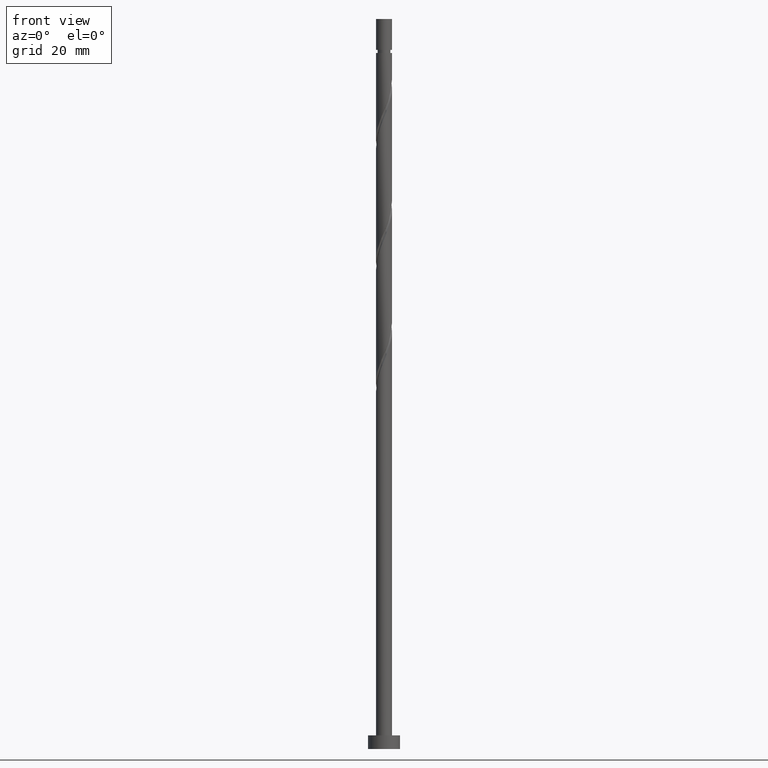
[diagram: clean part render]
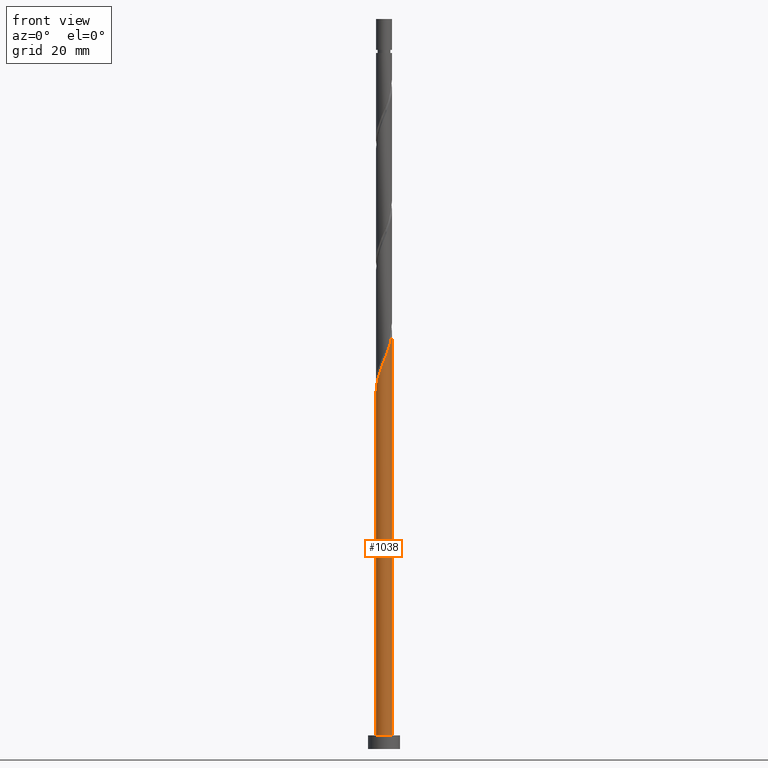
[diagram: same view with one face highlighted and labeled with its STEP entity id]
A machine part, front view. The second image highlights one B-rep face of the part: STEP entity #1038.
In plain terms, the highlighted cylindrical surface (edge-blend (fillet) strip) has radius 1.75 mm, axis along (-0, -0, -1).
Its self-contained STEP definition (entity closure, byte-faithful):
#12 = DIRECTION ( 'NONE',  ( 1.000000000000000000, 0.000000000000000000, 0.000000000000000000 ) ) ;
#30 = CARTESIAN_POINT ( 'NONE',  ( -1.750000000000000000, 0.000000000000000000, 160.0000000000000000 ) ) ;
#50 = CARTESIAN_POINT ( 'NONE',  ( 0.000000000000000000, 0.000000000000000000, 160.0000000000000000 ) ) ;
#83 = CARTESIAN_POINT ( 'NONE',  ( 1.704685323725828150, -0.3956614045794445977, 90.71485790936121418 ) ) ;
#100 = CARTESIAN_POINT ( 'NONE',  ( -0.1490321258245771163, -1.743642573887268510, 84.65425184875519449 ) ) ;
#101 = ORIENTED_EDGE ( 'NONE', *, *, #510, .F. ) ;
#111 = CARTESIAN_POINT ( 'NONE',  ( -1.647983256157279808, -0.5887709125162861046, 79.80576700027032189 ) ) ;
#131 = VERTEX_POINT ( 'NONE', #234 ) ;
#157 = VECTOR ( 'NONE', #926, 1000.000000000000000 ) ;
#208 = CARTESIAN_POINT ( 'NONE',  ( 1.647797801975740661, -0.6407581522230126891, 90.10879730330061932 ) ) ;
#214 = CARTESIAN_POINT ( 'NONE',  ( 1.039795711094358976, -1.429906809909690768, 87.68455487905818302 ) ) ;
#233 = VERTEX_POINT ( 'NONE', #417 ) ;
#234 = CARTESIAN_POINT ( 'NONE',  ( 1.750000000000000000, 2.143131898507868297E-16, 3.000000000000000000 ) ) ;
#249 = VERTEX_POINT ( 'NONE', #1061 ) ;
#335 = CARTESIAN_POINT ( 'NONE',  ( 0.5948253771886973240, -1.664929841311235892, 86.47243366693696487 ) ) ;
#417 = CARTESIAN_POINT ( 'NONE',  ( -1.750000000000002887, -1.772383253364305615E-15, 78.35025191490881014 ) ) ;
#442 = EDGE_LOOP ( 'NONE', ( #101, #941, #792, #1405 ) ) ;
#479 = CARTESIAN_POINT ( 'NONE',  ( -1.750000000000002887, -0.05035717141668679536, 78.47234991962702111 ) ) ;
#480 = VERTEX_POINT ( 'NONE', #1429 ) ;
#489 = CARTESIAN_POINT ( 'NONE',  ( -1.750000000000002887, -1.772383253364305615E-15, 78.35025191490881014 ) ) ;
#510 = EDGE_CURVE ( 'NONE', #480, #131, #891, .T. ) ;
#541 = DIRECTION ( 'NONE',  ( -0.000000000000000000, -0.000000000000000000, -1.000000000000000000 ) ) ;
#550 = DIRECTION ( 'NONE',  ( -1.000000000000000000, 0.000000000000000000, 0.000000000000000000 ) ) ;
#580 = CARTESIAN_POINT ( 'NONE',  ( 1.750000000000002887, 1.712555970550320905E-15, 91.68358524824213873 ) ) ;
#586 = CARTESIAN_POINT ( 'NONE',  ( 1.524162891183048707, -0.8598996924877582160, 89.50273669724001024 ) ) ;
#621 = AXIS2_PLACEMENT_3D ( 'NONE', #50, #1314, #550 ) ;
#653 =( BOUNDED_CURVE ( )  B_SPLINE_CURVE ( 2, ( #489, #479, #1386, #1490, #111, #955, #948, #973, #1112, #1208, #1215, #982, #100, #1482, #1088, #335, #1350, #214, #826, #1499, #586, #208, #83, #1629, #580 ),
 .UNSPECIFIED., .F., .T. ) 
 B_SPLINE_CURVE_WITH_KNOTS ( ( 3, 2, 2, 2, 2, 2, 2, 2, 2, 2, 2, 2, 3 ),
 ( 0.05452521624175116211, 0.05681818181818176772, 0.06818181818181823228, 0.07954545454545458583, 0.09090909090909093937, 0.1022727272727272929, 0.1136363636363636465, 0.1250000000000000000, 0.1363636363636363535, 0.1477272727272727071, 0.1590909090909090606, 0.1704545454545454142, 0.1795252162417514119 ),
 .UNSPECIFIED. ) 
 CURVE ( )  GEOMETRIC_REPRESENTATION_ITEM ( )  RATIONAL_B_SPLINE_CURVE ( ( 0.9061101570135700056, 0.9072237824201522249, 0.9090909090909298218, 0.8998376744372320601, 0.9090909090909298218, 0.8998376744372320601, 0.9090909090909298218, 0.8998376744372320601, 0.9090909090909298218, 0.8998376744372320601, 0.9090909090909298218, 0.8998376744372320601, 0.9090909090909298218, 0.8998376744372320601, 0.9090909090909298218, 0.8998376744372320601, 0.9090909090909298218, 0.8998376744372320601, 0.9090909090909298218, 0.8998376744372320601, 0.9090909090909298218, 0.8998376744372320601, 0.9090909090909298218, 0.9017048011080095460, 0.9061101570135702277 ) ) 
 REPRESENTATION_ITEM ( '' )  );
#665 = FACE_OUTER_BOUND ( 'NONE', #442, .T. ) ;
#792 = ORIENTED_EDGE ( 'NONE', *, *, #1064, .T. ) ;
#826 = CARTESIAN_POINT ( 'NONE',  ( 1.220161845742357754, -1.254474021331096756, 88.29061548511879209 ) ) ;
#891 = LINE ( 'NONE', #1420, #1592 ) ;
#926 = DIRECTION ( 'NONE',  ( -0.000000000000000000, -0.000000000000000000, -1.000000000000000000 ) ) ;
#941 = ORIENTED_EDGE ( 'NONE', *, *, #1401, .F. ) ;
#948 = CARTESIAN_POINT ( 'NONE',  ( -1.415352420340175277, -1.029212090017027847, 81.01788821239151162 ) ) ;
#955 = CARTESIAN_POINT ( 'NONE',  ( -1.563330778801824472, -0.8257151336188613966, 80.41182760633093096 ) ) ;
#973 = CARTESIAN_POINT ( 'NONE',  ( -1.267374061878525415, -1.232709046415194631, 81.62394881845214911 ) ) ;
#982 = CARTESIAN_POINT ( 'NONE',  ( -0.3997300804350925607, -1.722214989085766534, 84.04819124269452857 ) ) ;
#990 = CARTESIAN_POINT ( 'NONE',  ( 0.000000000000000000, 0.000000000000000000, 3.000000000000000000 ) ) ;
#1038 = ADVANCED_FACE ( 'NONE', ( #665 ), #1459, .T. ) ;
#1061 = CARTESIAN_POINT ( 'NONE',  ( -1.750000000000000000, 0.000000000000000000, 3.000000000000000000 ) ) ;
#1064 = EDGE_CURVE ( 'NONE', #233, #249, #1334, .T. ) ;
#1088 = CARTESIAN_POINT ( 'NONE',  ( 0.3482456029873179926, -1.715000000000002300, 85.86637306087639843 ) ) ;
#1112 = CARTESIAN_POINT ( 'NONE',  ( -1.068058148852061517, -1.386272624944573373, 82.23000942451274398 ) ) ;
#1208 = CARTESIAN_POINT ( 'NONE',  ( -0.8687422358255979526, -1.539836203473951892, 82.83607003057335305 ) ) ;
#1215 = CARTESIAN_POINT ( 'NONE',  ( -0.6342361581303455065, -1.631025596279859213, 83.44213063663394792 ) ) ;
#1263 = CIRCLE ( 'NONE', #1516, 1.750000000000000000 ) ;
#1314 = DIRECTION ( 'NONE',  ( -0.000000000000000000, -0.000000000000000000, -1.000000000000000000 ) ) ;
#1334 = LINE ( 'NONE', #30, #157 ) ;
#1350 = CARTESIAN_POINT ( 'NONE',  ( 0.8173105441415277062, -1.547418325610463441, 87.07849427299757394 ) ) ;
#1386 = CARTESIAN_POINT ( 'NONE',  ( -1.747104289494325169, -0.1006310172389177221, 78.59364578814908953 ) ) ;
#1401 = EDGE_CURVE ( 'NONE', #233, #480, #653, .T. ) ;
#1405 = ORIENTED_EDGE ( 'NONE', *, *, #1609, .T. ) ;
#1420 = CARTESIAN_POINT ( 'NONE',  ( 1.750000000000000000, 2.143131898507868297E-16, 160.0000000000000000 ) ) ;
#1429 = CARTESIAN_POINT ( 'NONE',  ( 1.750000000000002887, 1.712555970550320905E-15, 91.68358524824213873 ) ) ;
#1459 = CYLINDRICAL_SURFACE ( 'NONE', #621, 1.750000000000000000 ) ;
#1482 = CARTESIAN_POINT ( 'NONE',  ( 0.1016658287859384807, -1.765070158688770041, 85.26031245481573251 ) ) ;
#1490 = CARTESIAN_POINT ( 'NONE',  ( -1.732635733512734477, -0.3518266914137117563, 79.19970639420974123 ) ) ;
#1499 = CARTESIAN_POINT ( 'NONE',  ( 1.400527980390356753, -1.079041232752502744, 88.89667609117940117 ) ) ;
#1516 = AXIS2_PLACEMENT_3D ( 'NONE', #990, #1527, #12 ) ;
#1527 = DIRECTION ( 'NONE',  ( 0.000000000000000000, 0.000000000000000000, 1.000000000000000000 ) ) ;
#1592 = VECTOR ( 'NONE', #541, 1000.000000000000000 ) ;
#1609 = EDGE_CURVE ( 'NONE', #249, #131, #1263, .T. ) ;
#1629 = CARTESIAN_POINT ( 'NONE',  ( 1.750000000000003109, -0.2004256229239622933, 91.19762529527082506 ) ) ;